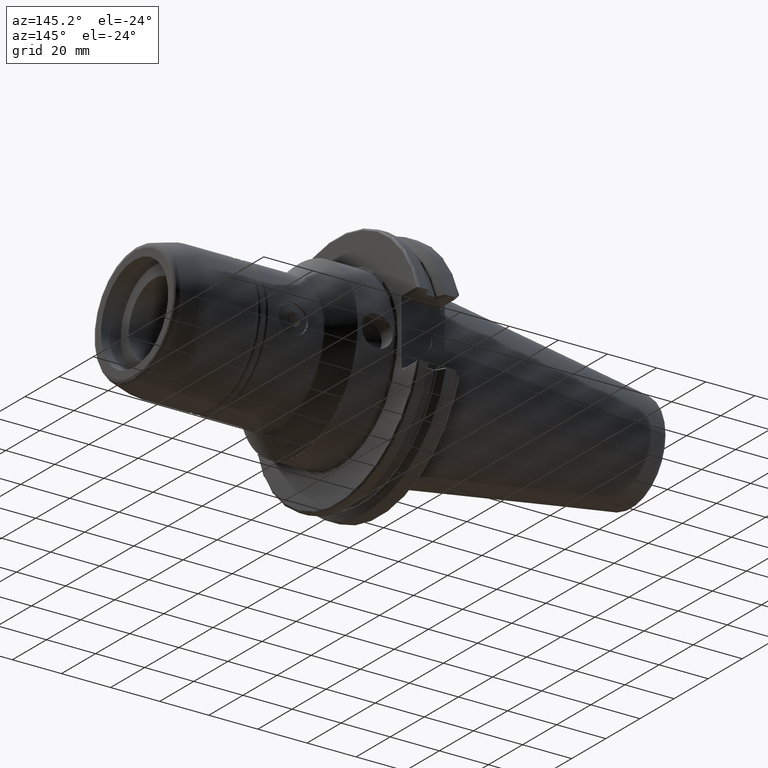
[diagram: clean part render]
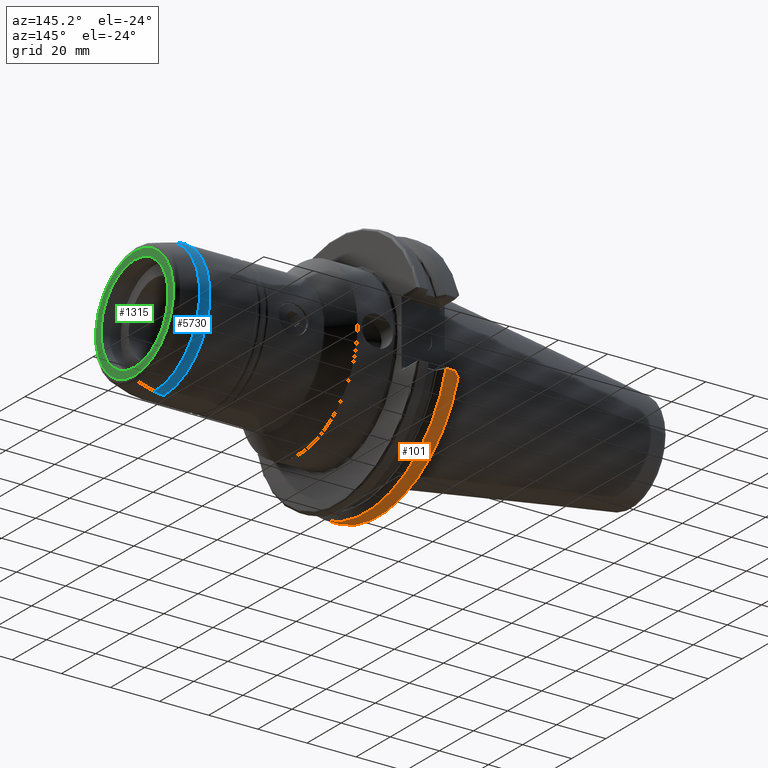
[diagram: same view with three faces highlighted in distinct colors, each labeled with its STEP entity id]
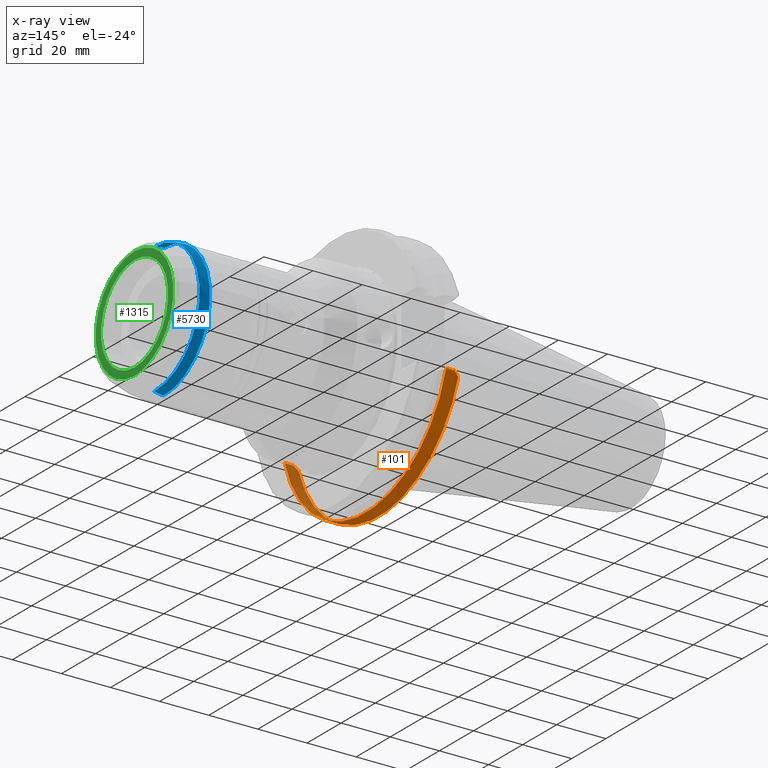
[diagram: x-ray of the same camera — body ghosted, the three highlighted faces saturated]
A machine part, auxiliary view with three faces highlighted in distinct colors.
The next image is the same camera in x-ray (body ghosted, the three faces saturated) — at least one of them is partly hidden behind the body in this view.
Their STEP definitions:

[orange] entity #101 — the highlighted cylindrical surface (partial cylindrical patch) has radius 49.2125 mm, axis along (1, 0, 0).
#31 = CARTESIAN_POINT ( 'NONE',  ( 3.822483471962207200, 47.31138307138064600, -13.47617654831240100 ) ) ;
#61 = CYLINDRICAL_SURFACE ( 'NONE', #865, 49.21249999999999100 ) ;
#84 = CARTESIAN_POINT ( 'NONE',  ( 2.116068725322314900, -0.02003167494522145300, -2.740953257266259200E-015 ) ) ;
#101 = ADVANCED_FACE ( 'NONE', ( #4833 ), #61, .T. ) ;
#335 = CARTESIAN_POINT ( 'NONE',  ( 34.86606872532232900, -47.31187355158718300, -13.61439856052014700 ) ) ;
#381 = VERTEX_POINT ( 'NONE', #4207 ) ;
#563 = VECTOR ( 'NONE', #4229, 1000.000000000000000 ) ;
#598 = CARTESIAN_POINT ( 'NONE',  ( 7.314472504668656500, 47.31138307138064600, -13.47617654831240200 ) ) ;
#628 = DIRECTION ( 'NONE',  ( 0.0000000000000000000, -1.000000000000000000, 0.0000000000000000000 ) ) ;
#632 = ORIENTED_EDGE ( 'NONE', *, *, #1512, .T. ) ;
#865 = AXIS2_PLACEMENT_3D ( 'NONE', #6813, #6254, #2343 ) ;
#946 = CIRCLE ( 'NONE', #5283, 49.21249999999999100 ) ;
#1011 = CARTESIAN_POINT ( 'NONE',  ( 7.419901956246685700, -0.02003167494522145300, -2.740953257266259200E-015 ) ) ;
#1107 = CARTESIAN_POINT ( 'NONE',  ( 2.696188660222512900, -46.96029349961791900, -14.79394047331382300 ) ) ;
#1156 = VERTEX_POINT ( 'NONE', #598 ) ;
#1512 = EDGE_CURVE ( 'NONE', #4281, #1156, #3750, .T. ) ;
#1583 = DIRECTION ( 'NONE',  ( 0.0000000000000000000, 1.000000000000000000, 0.0000000000000000000 ) ) ;
#1642 = CARTESIAN_POINT ( 'NONE',  ( 7.314472504668656500, 47.31138307138064600, -13.47617654831240200 ) ) ;
#1664 = CARTESIAN_POINT ( 'NONE',  ( 3.856425719053341100, -47.31187355158718300, -13.61439856052013300 ) ) ;
#1875 = CARTESIAN_POINT ( 'NONE',  ( 2.114823414815919700, 46.78300494247928800, -15.21005974429850800 ) ) ;
#1910 = EDGE_CURVE ( 'NONE', #1954, #5848, #946, .T. ) ;
#1925 = B_SPLINE_CURVE_WITH_KNOTS ( 'NONE', 3,
 ( #1664, #4426, #1107, #5010 ),
 .UNSPECIFIED., .F., .F.,
 ( 4, 4 ),
 ( 0.0000000000000000000, 0.6850830647220521600 ),
 .UNSPECIFIED. ) ;
#1954 = VERTEX_POINT ( 'NONE', #3264 ) ;
#2000 = CARTESIAN_POINT ( 'NONE',  ( 7.398633379557086400, -47.30888981274517800, -13.62476306578198900 ) ) ;
#2007 = CARTESIAN_POINT ( 'NONE',  ( 3.253678478131278900, 47.14581475115961200, -14.05769036538200100 ) ) ;
#2059 = B_SPLINE_CURVE_WITH_KNOTS ( 'NONE', 3,
 ( #3134, #6471, #2007, #7033 ),
 .UNSPECIFIED., .F., .F.,
 ( 4, 4 ),
 ( 0.3191809317790177400, 1.000000000000000000 ),
 .UNSPECIFIED. ) ;
#2180 = ORIENTED_EDGE ( 'NONE', *, *, #3389, .T. ) ;
#2237 = CARTESIAN_POINT ( 'NONE',  ( 7.419901956246685700, 47.28813621196679400, -13.55755905145710500 ) ) ;
#2273 = VECTOR ( 'NONE', #7082, 1000.000000000000000 ) ;
#2343 = DIRECTION ( 'NONE',  ( 0.0000000000000000000, 1.000000000000000000, 0.0000000000000000000 ) ) ;
#2387 = EDGE_CURVE ( 'NONE', #5253, #4281, #2059, .T. ) ;
#2461 = VERTEX_POINT ( 'NONE', #2645 ) ;
#2536 = CARTESIAN_POINT ( 'NONE',  ( 7.419901956246685700, -47.30266442727615600, -13.64634735957580800 ) ) ;
#2589 = EDGE_CURVE ( 'NONE', #381, #6136, #1925, .T. ) ;
#2645 = CARTESIAN_POINT ( 'NONE',  ( 7.387999178701809600, -47.31187355158718300, -13.61439856052014700 ) ) ;
#3102 = ORIENTED_EDGE ( 'NONE', *, *, #5648, .T. ) ;
#3134 = CARTESIAN_POINT ( 'NONE',  ( 2.114823414815919700, 46.78300494247928800, -15.21005974429850800 ) ) ;
#3209 = CARTESIAN_POINT ( 'NONE',  ( 34.86606872532232900, 47.31138307138064600, -13.47617654831240200 ) ) ;
#3264 = CARTESIAN_POINT ( 'NONE',  ( 7.419901956246685700, -47.30266442727615600, -13.64634735957580800 ) ) ;
#3389 = EDGE_CURVE ( 'NONE', #2461, #381, #4819, .T. ) ;
#3595 = CARTESIAN_POINT ( 'NONE',  ( 7.419901956246685700, 47.28813621196679400, -13.55755905145710500 ) ) ;
#3634 = EDGE_CURVE ( 'NONE', #1954, #2461, #4388, .T. ) ;
#3750 = LINE ( 'NONE', #3209, #2273 ) ;
#3910 = ORIENTED_EDGE ( 'NONE', *, *, #4724, .T. ) ;
#3968 = DIRECTION ( 'NONE',  ( 1.000000000000000000, 4.151679104512832300E-020, -0.0000000000000000000 ) ) ;
#4030 = AXIS2_PLACEMENT_3D ( 'NONE', #84, #3968, #628 ) ;
#4207 = CARTESIAN_POINT ( 'NONE',  ( 3.856425719053341100, -47.31187355158718300, -13.61439856052013300 ) ) ;
#4229 = DIRECTION ( 'NONE',  ( -1.000000000000000000, -4.151679104512832300E-020, 0.0000000000000000000 ) ) ;
#4251 = ORIENTED_EDGE ( 'NONE', *, *, #2387, .T. ) ;
#4281 = VERTEX_POINT ( 'NONE', #31 ) ;
#4388 = B_SPLINE_CURVE_WITH_KNOTS ( 'NONE', 3,
 ( #2536, #4696, #2000, #5911 ),
 .UNSPECIFIED., .F., .F.,
 ( 4, 4 ),
 ( 0.0000000000000000000, 1.000000000000000000 ),
 .UNSPECIFIED. ) ;
#4412 = CARTESIAN_POINT ( 'NONE',  ( 7.349615613504899300, 47.30365744763720000, -13.50331070615490800 ) ) ;
#4426 = CARTESIAN_POINT ( 'NONE',  ( 3.276307189637926800, -47.14163031576719500, -14.20576630914580500 ) ) ;
#4466 = CARTESIAN_POINT ( 'NONE',  ( 2.114790538532335300, -46.76836643219118600, -15.37736494271870300 ) ) ;
#4696 = CARTESIAN_POINT ( 'NONE',  ( 7.409267580412530300, -47.30590266666723000, -13.63512659016734900 ) ) ;
#4724 = EDGE_CURVE ( 'NONE', #1156, #5848, #4829, .T. ) ;
#4819 = LINE ( 'NONE', #335, #563 ) ;
#4829 = B_SPLINE_CURVE_WITH_KNOTS ( 'NONE', 3,
 ( #1642, #4412, #5557, #2237 ),
 .UNSPECIFIED., .F., .F.,
 ( 4, 4 ),
 ( 0.0000000000000000000, 1.000000000000000000 ),
 .UNSPECIFIED. ) ;
#4833 = FACE_OUTER_BOUND ( 'NONE', #5559, .T. ) ;
#4906 = DIRECTION ( 'NONE',  ( 1.000000000000000000, 4.151679104512832300E-020, -0.0000000000000000000 ) ) ;
#5010 = CARTESIAN_POINT ( 'NONE',  ( 2.114790538532335300, -46.76836643219118600, -15.37736494271870300 ) ) ;
#5253 = VERTEX_POINT ( 'NONE', #1875 ) ;
#5283 = AXIS2_PLACEMENT_3D ( 'NONE', #1011, #4906, #1583 ) ;
#5557 = CARTESIAN_POINT ( 'NONE',  ( 7.384758722341141300, 47.29590849067921000, -13.53043822057632700 ) ) ;
#5559 = EDGE_LOOP ( 'NONE', ( #6645, #3102, #4251, #632, #3910, #7190, #5863, #2180 ) ) ;
#5608 = CIRCLE ( 'NONE', #4030, 49.21249999999999100 ) ;
#5648 = EDGE_CURVE ( 'NONE', #6136, #5253, #5608, .T. ) ;
#5848 = VERTEX_POINT ( 'NONE', #3595 ) ;
#5863 = ORIENTED_EDGE ( 'NONE', *, *, #3634, .T. ) ;
#5911 = CARTESIAN_POINT ( 'NONE',  ( 7.387999178701809600, -47.31187355158718300, -13.61439856052014700 ) ) ;
#6136 = VERTEX_POINT ( 'NONE', #4466 ) ;
#6254 = DIRECTION ( 'NONE',  ( 1.000000000000000000, 4.151679104512832300E-020, -0.0000000000000000000 ) ) ;
#6471 = CARTESIAN_POINT ( 'NONE',  ( 2.684873484300349700, 46.96952848801269200, -14.63615260892078900 ) ) ;
#6645 = ORIENTED_EDGE ( 'NONE', *, *, #2589, .T. ) ;
#6813 = CARTESIAN_POINT ( 'NONE',  ( 34.86606872532232900, -0.02003167494522144900, -2.740953257266259200E-015 ) ) ;
#7033 = CARTESIAN_POINT ( 'NONE',  ( 3.822483471962207200, 47.31138307138064600, -13.47617654831240100 ) ) ;
#7082 = DIRECTION ( 'NONE',  ( 1.000000000000000000, 4.151679104512832300E-020, -0.0000000000000000000 ) ) ;
#7190 = ORIENTED_EDGE ( 'NONE', *, *, #1910, .F. ) ;

[blue] entity #5730 — the highlighted toroidal blend (fillet) surface has major radius 12 mm and minor (blend) radius 15 mm.
#22 = CARTESIAN_POINT ( 'NONE',  ( 89.44128126548346800, 0.0000000000000000000, 0.0000000000000000000 ) ) ;
#163 = CIRCLE ( 'NONE', #328, 14.99999999705981000 ) ;
#176 = AXIS2_PLACEMENT_3D ( 'NONE', #1817, #4574, #673 ) ;
#236 = CARTESIAN_POINT ( 'NONE',  ( 93.32356693573291300, 3.275249736968164300E-015, -26.48888739591726700 ) ) ;
#328 = AXIS2_PLACEMENT_3D ( 'NONE', #5314, #1991, #5905 ) ;
#574 = DIRECTION ( 'NONE',  ( 0.0000000000000000000, 0.0000000000000000000, 1.000000000000000000 ) ) ;
#673 = DIRECTION ( 'NONE',  ( 0.0000000000000000000, 0.0000000000000000000, 1.000000000000000000 ) ) ;
#810 = TOROIDAL_SURFACE ( 'NONE', #176, 12.00000000294019400, 14.99999999705981000 ) ;
#828 = AXIS2_PLACEMENT_3D ( 'NONE', #6105, #2759, #6665 ) ;
#1102 = EDGE_CURVE ( 'NONE', #3291, #3914, #3066, .T. ) ;
#1446 = AXIS2_PLACEMENT_3D ( 'NONE', #5366, #2048, #5950 ) ;
#1719 = CARTESIAN_POINT ( 'NONE',  ( 89.44128126548346800, 0.0000000000000000000, 27.00000000000000400 ) ) ;
#1817 = CARTESIAN_POINT ( 'NONE',  ( 89.44128126548346800, 0.0000000000000000000, 0.0000000000000000000 ) ) ;
#1866 = VERTEX_POINT ( 'NONE', #2005 ) ;
#1991 = DIRECTION ( 'NONE',  ( -0.0000000000000000000, 1.000000000000000000, 1.224646799147353200E-016 ) ) ;
#2005 = CARTESIAN_POINT ( 'NONE',  ( 89.44128126548346800, 3.306546357697854100E-015, -27.00000000000000400 ) ) ;
#2048 = DIRECTION ( 'NONE',  ( -1.000000000000000000, -0.0000000000000000000, -0.0000000000000000000 ) ) ;
#2216 = AXIS2_PLACEMENT_3D ( 'NONE', #22, #3912, #574 ) ;
#2713 = ORIENTED_EDGE ( 'NONE', *, *, #4732, .F. ) ;
#2759 = DIRECTION ( 'NONE',  ( 0.0000000000000000000, -1.000000000000000000, 0.0000000000000000000 ) ) ;
#2823 = ORIENTED_EDGE ( 'NONE', *, *, #7149, .T. ) ;
#3066 = CIRCLE ( 'NONE', #828, 14.99999999705981000 ) ;
#3291 = VERTEX_POINT ( 'NONE', #4687 ) ;
#3580 = VERTEX_POINT ( 'NONE', #236 ) ;
#3606 = FACE_OUTER_BOUND ( 'NONE', #5044, .T. ) ;
#3912 = DIRECTION ( 'NONE',  ( -1.000000000000000000, -0.0000000000000000000, -0.0000000000000000000 ) ) ;
#3914 = VERTEX_POINT ( 'NONE', #1719 ) ;
#4113 = ORIENTED_EDGE ( 'NONE', *, *, #1102, .F. ) ;
#4574 = DIRECTION ( 'NONE',  ( -1.000000000000000000, -0.0000000000000000000, -0.0000000000000000000 ) ) ;
#4687 = CARTESIAN_POINT ( 'NONE',  ( 93.32356693573291300, 0.0000000000000000000, 26.48888739591726700 ) ) ;
#4732 = EDGE_CURVE ( 'NONE', #3914, #1866, #5185, .T. ) ;
#5044 = EDGE_LOOP ( 'NONE', ( #2823, #6565, #2713, #4113 ) ) ;
#5185 = CIRCLE ( 'NONE', #2216, 27.00000000000000400 ) ;
#5314 = CARTESIAN_POINT ( 'NONE',  ( 89.44128126548346800, 1.469576159336893600E-015, -12.00000000294019400 ) ) ;
#5366 = CARTESIAN_POINT ( 'NONE',  ( 93.32356693573291300, 0.0000000000000000000, 0.0000000000000000000 ) ) ;
#5718 = CIRCLE ( 'NONE', #1446, 26.48888739591726700 ) ;
#5730 = ADVANCED_FACE ( 'NONE', ( #3606 ), #810, .T. ) ;
#5905 = DIRECTION ( 'NONE',  ( 0.0000000000000000000, -1.224646799147353200E-016, 1.000000000000000000 ) ) ;
#5950 = DIRECTION ( 'NONE',  ( 0.0000000000000000000, 0.0000000000000000000, 1.000000000000000000 ) ) ;
#6105 = CARTESIAN_POINT ( 'NONE',  ( 89.44128126548346800, 0.0000000000000000000, 12.00000000294019400 ) ) ;
#6565 = ORIENTED_EDGE ( 'NONE', *, *, #7092, .T. ) ;
#6665 = DIRECTION ( 'NONE',  ( 0.0000000000000000000, 0.0000000000000000000, -1.000000000000000000 ) ) ;
#7092 = EDGE_CURVE ( 'NONE', #3580, #1866, #163, .T. ) ;
#7149 = EDGE_CURVE ( 'NONE', #3291, #3580, #5718, .T. ) ;

[green] entity #1315 — the highlighted planar face has unit normal (-1, 0, 0).
#200 = FACE_OUTER_BOUND ( 'NONE', #6389, .T. ) ;
#281 = EDGE_LOOP ( 'NONE', ( #5772, #4097 ) ) ;
#357 = DIRECTION ( 'NONE',  ( -1.000000000000000000, -0.0000000000000000000, -0.0000000000000000000 ) ) ;
#600 = ORIENTED_EDGE ( 'NONE', *, *, #5464, .F. ) ;
#796 = DIRECTION ( 'NONE',  ( -1.000000000000000000, -0.0000000000000000000, -0.0000000000000000000 ) ) ;
#894 = CARTESIAN_POINT ( 'NONE',  ( 101.4160687253223200, 2.908754126550275600E-015, -22.78585410437001000 ) ) ;
#1044 = DIRECTION ( 'NONE',  ( -1.000000000000000000, 0.0000000000000000000, -0.0000000000000000000 ) ) ;
#1315 = ADVANCED_FACE ( 'NONE', ( #6129, #200 ), #2735, .F. ) ;
#1633 = EDGE_CURVE ( 'NONE', #3167, #4256, #6979, .T. ) ;
#2047 = DIRECTION ( 'NONE',  ( -1.000000000000000000, -0.0000000000000000000, -0.0000000000000000000 ) ) ;
#2615 = VERTEX_POINT ( 'NONE', #7243 ) ;
#2735 = PLANE ( 'NONE',  #5959 ) ;
#2850 = AXIS2_PLACEMENT_3D ( 'NONE', #3690, #357, #4245 ) ;
#3146 = DIRECTION ( 'NONE',  ( -1.000000000000000000, -0.0000000000000000000, -0.0000000000000000000 ) ) ;
#3167 = VERTEX_POINT ( 'NONE', #6154 ) ;
#3202 = AXIS2_PLACEMENT_3D ( 'NONE', #5365, #2047, #5949 ) ;
#3304 = DIRECTION ( 'NONE',  ( -0.0000000000000000000, 0.0000000000000000000, 1.000000000000000000 ) ) ;
#3360 = CIRCLE ( 'NONE', #6061, 19.69999999999999600 ) ;
#3366 = CARTESIAN_POINT ( 'NONE',  ( 101.4160687253223200, 2.412554194320285300E-015, -19.69999999999999600 ) ) ;
#3676 = VERTEX_POINT ( 'NONE', #894 ) ;
#3690 = CARTESIAN_POINT ( 'NONE',  ( 101.4160687253223200, 0.0000000000000000000, 0.0000000000000000000 ) ) ;
#4097 = ORIENTED_EDGE ( 'NONE', *, *, #5496, .T. ) ;
#4139 = CARTESIAN_POINT ( 'NONE',  ( 101.4160687253223200, 0.0000000000000000000, 0.0000000000000000000 ) ) ;
#4161 = AXIS2_PLACEMENT_3D ( 'NONE', #4139, #796, #4690 ) ;
#4245 = DIRECTION ( 'NONE',  ( 0.0000000000000000000, 0.0000000000000000000, 1.000000000000000000 ) ) ;
#4256 = VERTEX_POINT ( 'NONE', #3366 ) ;
#4382 = CARTESIAN_POINT ( 'NONE',  ( 101.4160687253223300, 22.78585410437001000, 0.0000000000000000000 ) ) ;
#4690 = DIRECTION ( 'NONE',  ( 0.0000000000000000000, 0.0000000000000000000, 1.000000000000000000 ) ) ;
#5176 = CIRCLE ( 'NONE', #4161, 22.78585410437001000 ) ;
#5365 = CARTESIAN_POINT ( 'NONE',  ( 101.4160687253223200, 0.0000000000000000000, 0.0000000000000000000 ) ) ;
#5464 = EDGE_CURVE ( 'NONE', #2615, #3676, #5176, .T. ) ;
#5496 = EDGE_CURVE ( 'NONE', #4256, #3167, #3360, .T. ) ;
#5772 = ORIENTED_EDGE ( 'NONE', *, *, #1633, .T. ) ;
#5949 = DIRECTION ( 'NONE',  ( 0.0000000000000000000, 0.0000000000000000000, 1.000000000000000000 ) ) ;
#5959 = AXIS2_PLACEMENT_3D ( 'NONE', #4382, #1044, #3304 ) ;
#6061 = AXIS2_PLACEMENT_3D ( 'NONE', #6486, #3146, #7042 ) ;
#6129 = FACE_BOUND ( 'NONE', #281, .T. ) ;
#6154 = CARTESIAN_POINT ( 'NONE',  ( 101.4160687253223200, 0.0000000000000000000, 19.69999999999999600 ) ) ;
#6389 = EDGE_LOOP ( 'NONE', ( #600, #7000 ) ) ;
#6486 = CARTESIAN_POINT ( 'NONE',  ( 101.4160687253223200, 0.0000000000000000000, 0.0000000000000000000 ) ) ;
#6519 = CIRCLE ( 'NONE', #2850, 22.78585410437001000 ) ;
#6760 = EDGE_CURVE ( 'NONE', #3676, #2615, #6519, .T. ) ;
#6979 = CIRCLE ( 'NONE', #3202, 19.69999999999999600 ) ;
#7000 = ORIENTED_EDGE ( 'NONE', *, *, #6760, .F. ) ;
#7042 = DIRECTION ( 'NONE',  ( 0.0000000000000000000, 0.0000000000000000000, 1.000000000000000000 ) ) ;
#7243 = CARTESIAN_POINT ( 'NONE',  ( 101.4160687253223200, 0.0000000000000000000, 22.78585410437001000 ) ) ;